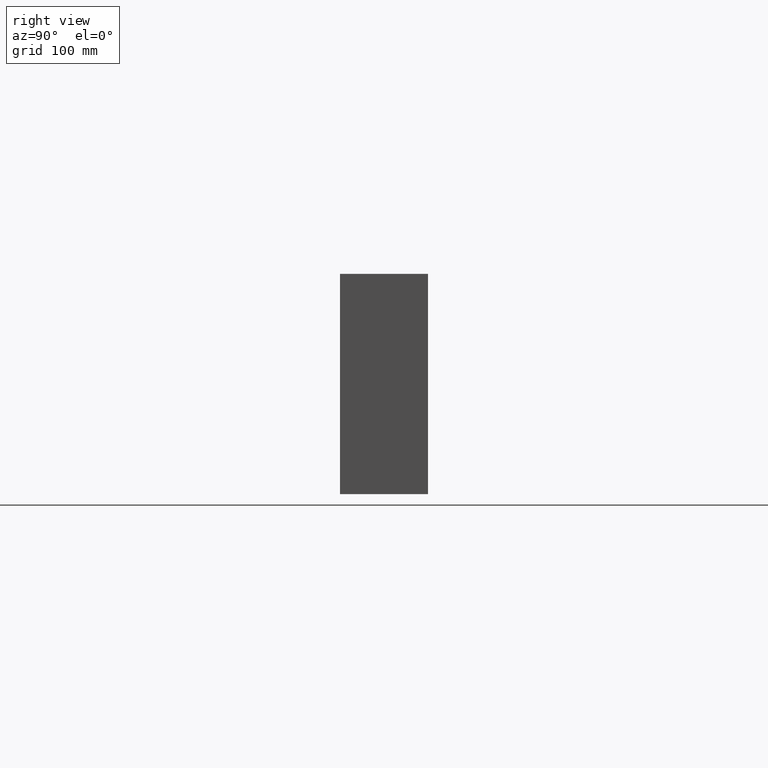
[diagram: clean part render]
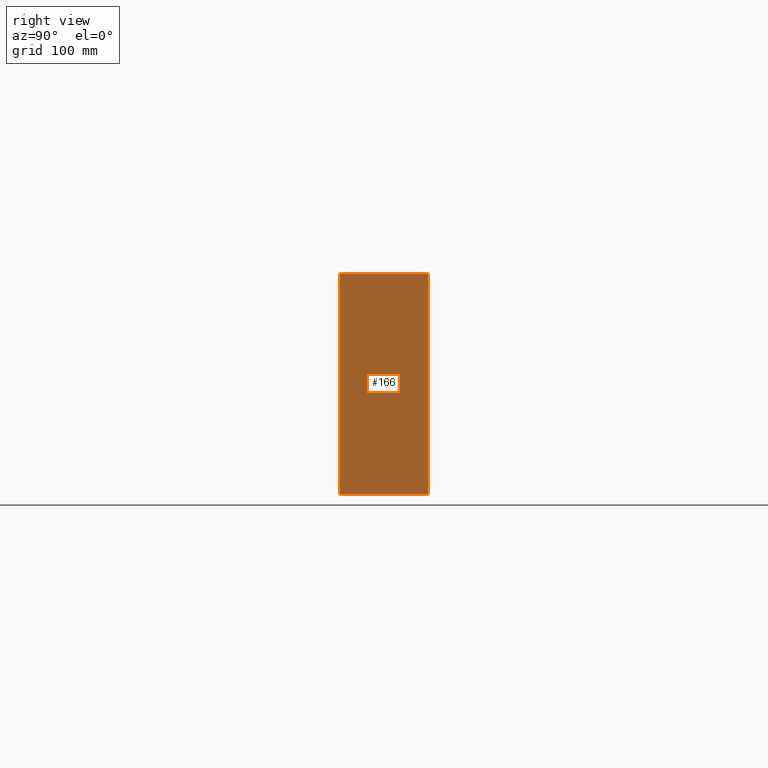
[diagram: same view with one face highlighted and labeled with its STEP entity id]
A machine part, right view. The second image highlights one B-rep face of the part: STEP entity #166.
In plain terms, the highlighted planar face has unit normal (-1, 0, 0).
Its self-contained STEP definition (entity closure, byte-faithful):
#6 = DIRECTION ( 'NONE',  ( -1.000000000000000000, 0.0000000000000000000, 0.0000000000000000000 ) ) ;
#12 = LINE ( 'NONE', #852, #652 ) ;
#53 = EDGE_LOOP ( 'NONE', ( #428, #990, #568, #101 ) ) ;
#101 = ORIENTED_EDGE ( 'NONE', *, *, #504, .T. ) ;
#151 = VECTOR ( 'NONE', #908, 1000.000000000000000 ) ;
#161 = DIRECTION ( 'NONE',  ( -0.0000000000000000000, -1.000000000000000000, -0.0000000000000000000 ) ) ;
#166 = ADVANCED_FACE ( 'NONE', ( #415 ), #761, .F. ) ;
#168 = LINE ( 'NONE', #545, #151 ) ;
#175 = EDGE_CURVE ( 'NONE', #622, #1050, #886, .T. ) ;
#186 = CARTESIAN_POINT ( 'NONE',  ( 1100.000000000000000, 140.0000000000000000, -350.0000000000000000 ) ) ;
#200 = EDGE_CURVE ( 'NONE', #1050, #414, #433, .T. ) ;
#344 = CARTESIAN_POINT ( 'NONE',  ( 1100.000000000000000, 0.0000000000000000000, 0.0000000000000000000 ) ) ;
#414 = VERTEX_POINT ( 'NONE', #1036 ) ;
#415 = FACE_OUTER_BOUND ( 'NONE', #53, .T. ) ;
#428 = ORIENTED_EDGE ( 'NONE', *, *, #956, .T. ) ;
#433 = LINE ( 'NONE', #186, #655 ) ;
#491 = DIRECTION ( 'NONE',  ( 0.0000000000000000000, 0.0000000000000000000, 1.000000000000000000 ) ) ;
#501 = AXIS2_PLACEMENT_3D ( 'NONE', #748, #6, #491 ) ;
#504 = EDGE_CURVE ( 'NONE', #622, #840, #12, .T. ) ;
#545 = CARTESIAN_POINT ( 'NONE',  ( 1100.000000000000000, 0.0000000000000000000, 0.0000000000000000000 ) ) ;
#568 = ORIENTED_EDGE ( 'NONE', *, *, #175, .F. ) ;
#622 = VERTEX_POINT ( 'NONE', #741 ) ;
#652 = VECTOR ( 'NONE', #771, 1000.000000000000000 ) ;
#655 = VECTOR ( 'NONE', #161, 1000.000000000000000 ) ;
#741 = CARTESIAN_POINT ( 'NONE',  ( 1100.000000000000000, 140.0000000000000000, 0.0000000000000000000 ) ) ;
#748 = CARTESIAN_POINT ( 'NONE',  ( 1100.000000000000000, 140.0000000000000000, 0.0000000000000000000 ) ) ;
#761 = PLANE ( 'NONE',  #501 ) ;
#764 = DIRECTION ( 'NONE',  ( 0.0000000000000000000, 0.0000000000000000000, -1.000000000000000000 ) ) ;
#771 = DIRECTION ( 'NONE',  ( -0.0000000000000000000, -1.000000000000000000, -0.0000000000000000000 ) ) ;
#799 = CARTESIAN_POINT ( 'NONE',  ( 1100.000000000000000, 140.0000000000000000, 0.0000000000000000000 ) ) ;
#823 = CARTESIAN_POINT ( 'NONE',  ( 1100.000000000000000, 140.0000000000000000, -350.0000000000000000 ) ) ;
#840 = VERTEX_POINT ( 'NONE', #344 ) ;
#852 = CARTESIAN_POINT ( 'NONE',  ( 1100.000000000000000, 140.0000000000000000, 0.0000000000000000000 ) ) ;
#886 = LINE ( 'NONE', #799, #895 ) ;
#895 = VECTOR ( 'NONE', #764, 1000.000000000000000 ) ;
#908 = DIRECTION ( 'NONE',  ( 0.0000000000000000000, 0.0000000000000000000, -1.000000000000000000 ) ) ;
#956 = EDGE_CURVE ( 'NONE', #840, #414, #168, .T. ) ;
#990 = ORIENTED_EDGE ( 'NONE', *, *, #200, .F. ) ;
#1036 = CARTESIAN_POINT ( 'NONE',  ( 1100.000000000000000, 0.0000000000000000000, -350.0000000000000000 ) ) ;
#1050 = VERTEX_POINT ( 'NONE', #823 ) ;